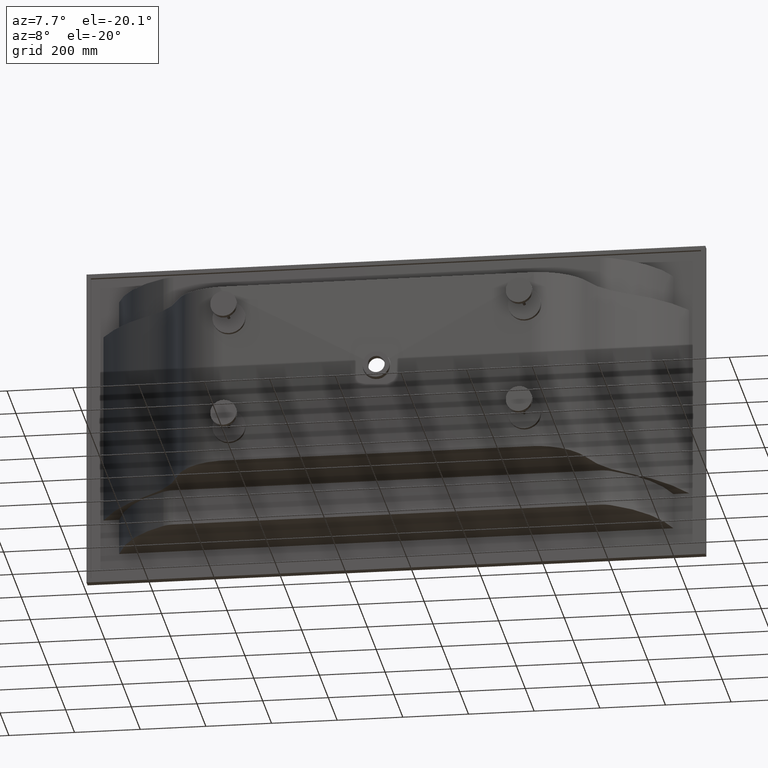
[diagram: clean part render]
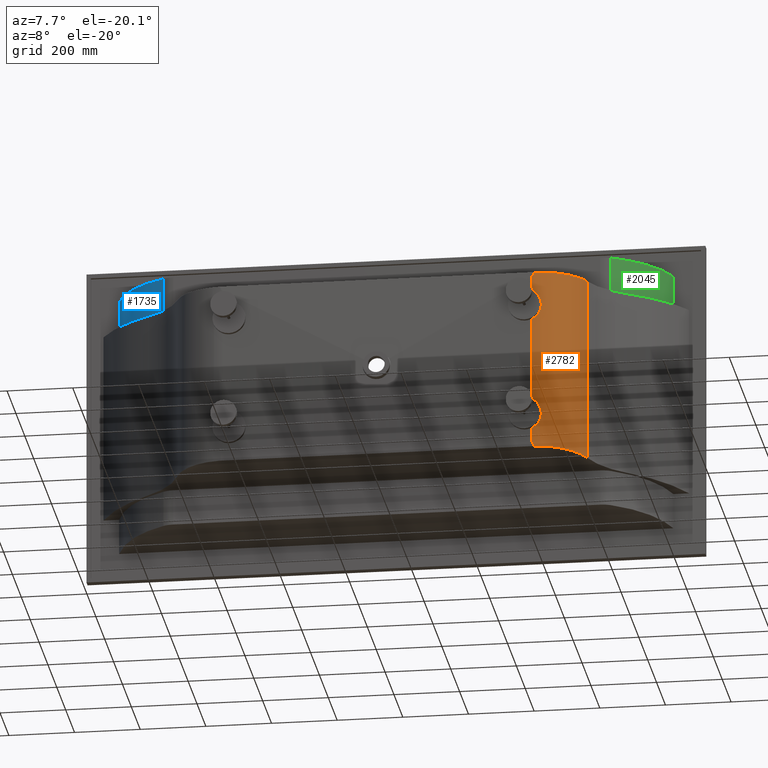
[diagram: same view with three faces highlighted in distinct colors, each labeled with its STEP entity id]
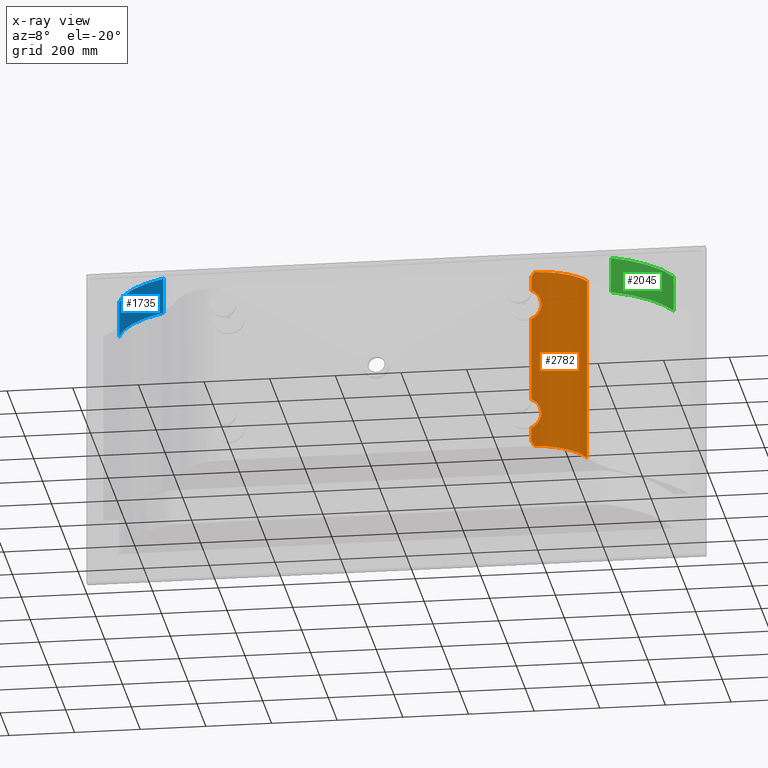
[diagram: x-ray of the same camera — body ghosted, the three highlighted faces saturated]
A machine part, auxiliary view with three faces highlighted in distinct colors.
The next image is the same camera in x-ray (body ghosted, the three faces saturated) — at least one of them is partly hidden behind the body in this view.
Their STEP definitions:

[orange] entity #2782 — the highlighted cylindrical surface (partial cylindrical patch) has radius 165 mm, axis along (-0, -0, -1).
#26 = CARTESIAN_POINT ( 'NONE',  ( 1426.696493059650000, -433.2260214440963800, -633.5027746628824200 ) ) ;
#63 = CARTESIAN_POINT ( 'NONE',  ( 1442.489792115214200, -430.8982968211311100, -668.8217381964243500 ) ) ;
#75 = CARTESIAN_POINT ( 'NONE',  ( 1438.386040424066300, -431.6541000525335200, -300.1020629434635200 ) ) ;
#79 = CARTESIAN_POINT ( 'NONE',  ( 1421.068810131897000, -433.6817647987145400, -711.0523601595712100 ) ) ;
#83 = LINE ( 'NONE', #2024, #2445 ) ;
#105 = CARTESIAN_POINT ( 'NONE',  ( 1431.563250334524400, -432.6748797059344700, -701.2332297683075200 ) ) ;
#115 = CARTESIAN_POINT ( 'NONE',  ( 1425.811046049679400, -433.3107751244260200, -632.6930295115032500 ) ) ;
#122 = CARTESIAN_POINT ( 'NONE',  ( 1421.139164985234900, -433.6870831031774300, -278.9435445288608000 ) ) ;
#132 = CARTESIAN_POINT ( 'NONE',  ( 1412.691473760132300, -433.9987778768532400, -274.2582861340561100 ) ) ;
#200 = CARTESIAN_POINT ( 'NONE',  ( 1429.235751477694500, -432.9553019622056800, -636.0758283631161000 ) ) ;
#236 = CARTESIAN_POINT ( 'NONE',  ( 1567.038037618298400, -321.4290994872972600, -214.9999999999999700 ) ) ;
#244 = EDGE_CURVE ( 'NONE', #812, #5590, #1832, .T. ) ;
#250 = CARTESIAN_POINT ( 'NONE',  ( 1567.038037618298400, -321.4290994872972600, -778.3812225715621500 ) ) ;
#255 =( BOUNDED_CURVE ( )  B_SPLINE_CURVE ( 3, ( #4833, #1196, #3627, #5670 ),
 .UNSPECIFIED., .F., .T. ) 
 B_SPLINE_CURVE_WITH_KNOTS ( ( 4, 4 ),
 ( 0.06389696033279621000, 1.247516648514925600 ),
 .UNSPECIFIED. ) 
 CURVE ( )  GEOMETRIC_REPRESENTATION_ITEM ( )  RATIONAL_B_SPLINE_CURVE ( ( 1.000000000000000000, 0.8866215947016795600, 0.8866215947016795600, 1.000000000000000000 ) ) 
 REPRESENTATION_ITEM ( '' )  );
#284 = AXIS2_PLACEMENT_3D ( 'NONE', #1311, #3276, #3914 ) ;
#513 = CARTESIAN_POINT ( 'NONE',  ( 1441.058614160349200, -431.1738647273696800, -681.9343017412259100 ) ) ;
#535 = CARTESIAN_POINT ( 'NONE',  ( 1442.446520953666300, -430.9068187001532800, -667.6098825917730400 ) ) ;
#598 = VERTEX_POINT ( 'NONE', #4746 ) ;
#650 = EDGE_CURVE ( 'NONE', #2671, #3299, #1356, .T. ) ;
#660 = CARTESIAN_POINT ( 'NONE',  ( 1412.691473760132300, -433.9987778768532400, -715.7417138659449200 ) ) ;
#731 = CARTESIAN_POINT ( 'NONE',  ( 1567.038037618298400, -321.4290994872972600, -211.6187774284378800 ) ) ;
#737 = EDGE_CURVE ( 'NONE', #3994, #2671, #4034, .T. ) ;
#752 = CARTESIAN_POINT ( 'NONE',  ( 1423.073008197570500, -433.5491879024173200, -630.3637222539176700 ) ) ;
#787 = DIRECTION ( 'NONE',  ( -0.0000000000000000000, -0.0000000000000000000, -1.000000000000000000 ) ) ;
#798 = CARTESIAN_POINT ( 'NONE',  ( 1442.151510301503300, -430.9646931125189400, -663.9855355516575600 ) ) ;
#801 = ORIENTED_EDGE ( 'NONE', *, *, #650, .T. ) ;
#812 = VERTEX_POINT ( 'NONE', #250 ) ;
#835 = CARTESIAN_POINT ( 'NONE',  ( 1414.876296786646000, -433.9598873627087400, -275.2700523444316900 ) ) ;
#842 = ORIENTED_EDGE ( 'NONE', *, *, #2043, .F. ) ;
#958 = CARTESIAN_POINT ( 'NONE',  ( 1435.701603409595000, -432.0948562825050800, -695.2873902799416300 ) ) ;
#971 = CARTESIAN_POINT ( 'NONE',  ( 1423.973894665424000, -433.4706933886080800, -708.8695020557629500 ) ) ;
#985 = CARTESIAN_POINT ( 'NONE',  ( 1426.720478016217200, -433.2316870992928000, -706.5340365444855000 ) ) ;
#1005 = CARTESIAN_POINT ( 'NONE',  ( 1440.092584064893600, -431.3527226299148700, -654.6251780921402300 ) ) ;
#1063 = CARTESIAN_POINT ( 'NONE',  ( 1433.093835823678100, -432.4750745446633600, -640.7107027210520300 ) ) ;
#1108 = CARTESIAN_POINT ( 'NONE',  ( 1442.446520953666100, -430.9068187001532200, -317.6098825917731600 ) ) ;
#1128 = DIRECTION ( 'NONE',  ( -0.0000000000000000000, -0.0000000000000000000, -1.000000000000000000 ) ) ;
#1130 = CARTESIAN_POINT ( 'NONE',  ( 1421.121088121154800, -433.6755030411843000, -215.4982614222358300 ) ) ;
#1147 = B_SPLINE_CURVE_WITH_KNOTS ( 'NONE', 3,
 ( #5091, #5542, #1630, #5175, #5618, #3412, #3865, #5656, #752, #115, #26, #4513, #2044, #200, #4133, #5018, #1063, #2776, #4088, #4987, #2359, #5006, #1005, #5216, #1241, #798, #3641, #1387, #535, #63, #2738, #3199, #4490, #1857, #4940, #2290, #513, #5404, #3181, #4063, #3488, #3620, #958, #3226, #2689, #105, #2750, #1433, #985, #971, #2732, #79, #3675, #2245, #4898, #5360 ),
 .UNSPECIFIED., .F., .F.,
 ( 4, 2, 2, 2, 2, 2, 2, 2, 2, 2, 2, 2, 2, 2, 2, 2, 2, 2, 2, 2, 2, 2, 2, 2, 2, 2, 2, 4 ),
 ( 0.1796758216464373300, 0.1832711890805124600, 0.1850688727975501300, 0.1868665565145877800, 0.1940572913827391400, 0.1976526588168149600, 0.1994503425338529600, 0.2012480262508910000, 0.2084387611190439700, 0.2156294959871969100, 0.2192248634212735400, 0.2228202308553501600, 0.2300109657235032700, 0.2336063331575798700, 0.2354040168746183400, 0.2372017005916567900, 0.2443924354598116500, 0.2479878028938890000, 0.2497854866109277800, 0.2515831703279665100, 0.2587739051961212600, 0.2659646400642760000, 0.2695600074983531800, 0.2731553749324303600, 0.2803461098005852200, 0.2839414772346627900, 0.2875368446687403000, 0.2947275795368952700 ),
 .UNSPECIFIED. ) ;
#1196 = CARTESIAN_POINT ( 'NONE',  ( 1490.192053648817800, -429.2560620627033400, -215.3455157662975500 ) ) ;
#1224 = CARTESIAN_POINT ( 'NONE',  ( 1412.691473760132300, -433.9987778768532400, -365.7417138659449200 ) ) ;
#1227 = DIRECTION ( 'NONE',  ( -0.0000000000000000000, -0.0000000000000000000, -1.000000000000000000 ) ) ;
#1241 = CARTESIAN_POINT ( 'NONE',  ( 1441.631659018793500, -431.0654405055162200, -660.4153709856234400 ) ) ;
#1265 = EDGE_CURVE ( 'NONE', #2823, #4621, #2938, .T. ) ;
#1311 = CARTESIAN_POINT ( 'NONE',  ( 1410.585262398701800, -269.0122212314678300, -214.9999999999999700 ) ) ;
#1356 = LINE ( 'NONE', #4260, #3587 ) ;
#1378 = CARTESIAN_POINT ( 'NONE',  ( 1441.116482150589500, -431.1643915077456800, -308.0754668858547800 ) ) ;
#1387 = CARTESIAN_POINT ( 'NONE',  ( 1442.413696066455300, -430.9132798970976500, -667.0014668294197700 ) ) ;
#1400 = LINE ( 'NONE', #236, #2430 ) ;
#1433 = CARTESIAN_POINT ( 'NONE',  ( 1428.426862078347500, -433.0525222782370100, -704.8568043951504500 ) ) ;
#1613 = FACE_OUTER_BOUND ( 'NONE', #2604, .T. ) ;
#1630 = CARTESIAN_POINT ( 'NONE',  ( 1414.876296786645800, -433.9598873627087400, -625.2700523444312900 ) ) ;
#1684 = B_SPLINE_CURVE_WITH_KNOTS ( 'NONE', 3,
 ( #2513, #5707, #835, #3897, #3576, #4384, #5630, #122, #1702, #2240, #4976, #5334, #4524, #4388, #2928, #4255, #3885, #5146, #2489, #75, #2985, #5427, #2367, #1378, #5268, #4744, #3792, #2888, #1108, #3460, #5259, #1773, #4325, #2621, #4541, #2080, #2937, #4122, #2460, #2215, #3501, #1734, #4108, #4379, #4781, #2201, #5771, #4794, #5778, #5666, #1828, #2763, #1878, #4419, #4402, #1224 ),
 .UNSPECIFIED., .F., .F.,
 ( 4, 2, 2, 2, 2, 2, 2, 2, 2, 2, 2, 2, 2, 2, 2, 2, 2, 2, 2, 2, 2, 2, 2, 2, 2, 2, 2, 4 ),
 ( 0.1796758216464372500, 0.1832711890805148700, 0.1850688727975536900, 0.1868665565145925000, 0.1940572913827467400, 0.1976526588168235600, 0.1994503425338620100, 0.2012480262509004900, 0.2084387611190534600, 0.2156294959872064300, 0.2192248634212830600, 0.2228202308553596800, 0.2300109657235129600, 0.2336063331575896400, 0.2354040168746278900, 0.2372017005916661800, 0.2443924354598197000, 0.2479878028938964900, 0.2497854866109349700, 0.2515831703279734500, 0.2587739051961270300, 0.2659646400642806100, 0.2695600074983571800, 0.2731553749324336900, 0.2803461098005872700, 0.2839414772346642300, 0.2875368446687411900, 0.2947275795368951000 ),
 .UNSPECIFIED. ) ;
#1697 = EDGE_CURVE ( 'NONE', #598, #2526, #83, .T. ) ;
#1702 = CARTESIAN_POINT ( 'NONE',  ( 1423.073008197571400, -433.5491879024177100, -280.3637222539178400 ) ) ;
#1734 = CARTESIAN_POINT ( 'NONE',  ( 1436.862058369326900, -431.9096466084647000, -343.1892150341543000 ) ) ;
#1773 = CARTESIAN_POINT ( 'NONE',  ( 1442.498551903349200, -430.8965686994811800, -322.4434691527328600 ) ) ;
#1775 = EDGE_CURVE ( 'NONE', #2526, #2823, #1147, .T. ) ;
#1828 = CARTESIAN_POINT ( 'NONE',  ( 1423.027077120635300, -433.5453929572468000, -359.6178084892939100 ) ) ;
#1832 =( BOUNDED_CURVE ( )  B_SPLINE_CURVE ( 3, ( #3668, #4703, #5640, #5183 ),
 .UNSPECIFIED., .F., .T. ) 
 B_SPLINE_CURVE_WITH_KNOTS ( ( 4, 4 ),
 ( 1.894076005074867500, 3.077695693256989000 ),
 .UNSPECIFIED. ) 
 CURVE ( )  GEOMETRIC_REPRESENTATION_ITEM ( )  RATIONAL_B_SPLINE_CURVE ( ( 1.000000000000000000, 0.8866215947016811100, 0.8866215947016811100, 1.000000000000000000 ) ) 
 REPRESENTATION_ITEM ( '' )  );
#1857 = CARTESIAN_POINT ( 'NONE',  ( 1441.804172227169800, -431.0320062381337600, -678.3986816338135700 ) ) ;
#1878 = CARTESIAN_POINT ( 'NONE',  ( 1420.066173059053700, -433.7427780565195100, -361.7319551882274600 ) ) ;
#1901 = CARTESIAN_POINT ( 'NONE',  ( 1415.503794301160000, -433.9628759124998400, -228.1905632386678900 ) ) ;
#2024 = CARTESIAN_POINT ( 'NONE',  ( 1412.691473760132300, -433.9987778768532400, -214.9999999999999700 ) ) ;
#2043 = EDGE_CURVE ( 'NONE', #3994, #3086, #255, .T. ) ;
#2044 = CARTESIAN_POINT ( 'NONE',  ( 1428.405494955771700, -433.0476252574973700, -635.1982717403183200 ) ) ;
#2076 = CARTESIAN_POINT ( 'NONE',  ( 1412.691473760132300, -433.9987778768532400, -229.7762333309478900 ) ) ;
#2080 = CARTESIAN_POINT ( 'NONE',  ( 1441.199193323553300, -431.1473644269698900, -331.3468894721364100 ) ) ;
#2127 = EDGE_CURVE ( 'NONE', #5590, #4621, #3966, .T. ) ;
#2194 = ORIENTED_EDGE ( 'NONE', *, *, #1775, .T. ) ;
#2201 = CARTESIAN_POINT ( 'NONE',  ( 1431.563250334523900, -432.6748797059344700, -351.2332297683074100 ) ) ;
#2215 = CARTESIAN_POINT ( 'NONE',  ( 1439.727002799061900, -431.4199009939407600, -336.5979284769836100 ) ) ;
#2240 = CARTESIAN_POINT ( 'NONE',  ( 1425.811046049678900, -433.3107751244260200, -282.6930295115034800 ) ) ;
#2245 = CARTESIAN_POINT ( 'NONE',  ( 1417.004888160031000, -433.8999541907423900, -713.6498611690777800 ) ) ;
#2261 = ORIENTED_EDGE ( 'NONE', *, *, #737, .T. ) ;
#2290 = CARTESIAN_POINT ( 'NONE',  ( 1441.199193323553100, -431.1473644269698300, -681.3468894721364700 ) ) ;
#2359 = CARTESIAN_POINT ( 'NONE',  ( 1438.856871990186600, -431.5726819882583500, -651.2250441799545800 ) ) ;
#2367 = CARTESIAN_POINT ( 'NONE',  ( 1440.092584064893600, -431.3527226299149800, -304.6251780921405700 ) ) ;
#2403 = DIRECTION ( 'NONE',  ( -0.0000000000000000000, -0.0000000000000000000, -1.000000000000000000 ) ) ;
#2430 = VECTOR ( 'NONE', #787, 1000.000000000000000 ) ;
#2432 = EDGE_CURVE ( 'NONE', #3299, #598, #1684, .T. ) ;
#2445 = VECTOR ( 'NONE', #2403, 1000.000000000000000 ) ;
#2460 = CARTESIAN_POINT ( 'NONE',  ( 1440.592379006774100, -431.2608080368127600, -333.6927223521573200 ) ) ;
#2489 = CARTESIAN_POINT ( 'NONE',  ( 1436.865832886899600, -431.9090831897700000, -296.8159690331673900 ) ) ;
#2513 = CARTESIAN_POINT ( 'NONE',  ( 1412.691473760132300, -433.9987778768532400, -274.2582861340561100 ) ) ;
#2526 = VERTEX_POINT ( 'NONE', #4011 ) ;
#2585 = CARTESIAN_POINT ( 'NONE',  ( 1415.503794301161200, -433.9628759124999000, -761.8094367613294900 ) ) ;
#2604 = EDGE_LOOP ( 'NONE', ( #2194, #3253, #4704, #5528, #5269, #842, #2261, #801, #5462, #5190 ) ) ;
#2621 = CARTESIAN_POINT ( 'NONE',  ( 1441.804172227169600, -431.0320062381337600, -328.3986816338134000 ) ) ;
#2671 = VERTEX_POINT ( 'NONE', #5129 ) ;
#2689 = CARTESIAN_POINT ( 'NONE',  ( 1433.022537586643500, -432.4812104584953000, -699.3151175333938500 ) ) ;
#2732 = CARTESIAN_POINT ( 'NONE',  ( 1423.027077120635600, -433.5453929572468000, -709.6178084892940200 ) ) ;
#2738 = CARTESIAN_POINT ( 'NONE',  ( 1442.500350913333700, -430.8962140326023000, -669.4264000397514600 ) ) ;
#2750 = CARTESIAN_POINT ( 'NONE',  ( 1430.802267314123100, -432.7709109975705200, -702.1616289459523200 ) ) ;
#2763 = CARTESIAN_POINT ( 'NONE',  ( 1421.068810131897600, -433.6817647987146500, -361.0523601595714400 ) ) ;
#2776 = CARTESIAN_POINT ( 'NONE',  ( 1435.704613596169800, -432.0942818216414600, -644.7198930781548800 ) ) ;
#2782 = ADVANCED_FACE ( 'NONE', ( #1613 ), #4859, .T. ) ;
#2823 = VERTEX_POINT ( 'NONE', #660 ) ;
#2888 = CARTESIAN_POINT ( 'NONE',  ( 1442.413696066455700, -430.9132798970976500, -317.0014668294197100 ) ) ;
#2928 = CARTESIAN_POINT ( 'NONE',  ( 1429.644661902144700, -432.9082293852882200, -286.5240265820732500 ) ) ;
#2937 = CARTESIAN_POINT ( 'NONE',  ( 1441.058614160349000, -431.1738647273696200, -331.9343017412259100 ) ) ;
#2938 = LINE ( 'NONE', #4768, #3987 ) ;
#2985 = CARTESIAN_POINT ( 'NONE',  ( 1438.856871990186400, -431.5726819882584100, -301.2250441799544100 ) ) ;
#3086 = VERTEX_POINT ( 'NONE', #731 ) ;
#3140 = EDGE_CURVE ( 'NONE', #3086, #812, #1400, .T. ) ;
#3181 = CARTESIAN_POINT ( 'NONE',  ( 1440.592379006774500, -431.2608080368128200, -683.6927223521574900 ) ) ;
#3199 = CARTESIAN_POINT ( 'NONE',  ( 1442.498551903348900, -430.8965686994809500, -672.4434691527328600 ) ) ;
#3226 = CARTESIAN_POINT ( 'NONE',  ( 1433.723258367987900, -432.3832016801590600, -698.3213811564467100 ) ) ;
#3253 = ORIENTED_EDGE ( 'NONE', *, *, #1265, .T. ) ;
#3276 = DIRECTION ( 'NONE',  ( -0.0000000000000000000, -0.0000000000000000000, -1.000000000000000000 ) ) ;
#3286 = CARTESIAN_POINT ( 'NONE',  ( 1421.121088121156200, -433.6755030411843000, -774.5017385777642900 ) ) ;
#3299 = VERTEX_POINT ( 'NONE', #132 ) ;
#3412 = CARTESIAN_POINT ( 'NONE',  ( 1418.063990091428400, -433.8434842776904400, -627.0249957003103400 ) ) ;
#3460 = CARTESIAN_POINT ( 'NONE',  ( 1442.489792115214000, -430.8982968211311100, -318.8217381964246300 ) ) ;
#3488 = CARTESIAN_POINT ( 'NONE',  ( 1438.874751128399100, -431.5721979426758100, -688.8444786195555000 ) ) ;
#3501 = CARTESIAN_POINT ( 'NONE',  ( 1438.874751128398900, -431.5721979426758100, -338.8444786195553900 ) ) ;
#3576 = CARTESIAN_POINT ( 'NONE',  ( 1417.012982886346400, -433.8878138904410100, -276.4169499235465000 ) ) ;
#3587 = VECTOR ( 'NONE', #1128, 1000.000000000000000 ) ;
#3620 = CARTESIAN_POINT ( 'NONE',  ( 1436.862058369326900, -431.9096466084647500, -693.1892150341544700 ) ) ;
#3627 = CARTESIAN_POINT ( 'NONE',  ( 1545.050838339348700, -387.0560208332939300, -213.8869889956958400 ) ) ;
#3641 = CARTESIAN_POINT ( 'NONE',  ( 1442.282480161618900, -430.9390390636826300, -665.1856782704341000 ) ) ;
#3668 = CARTESIAN_POINT ( 'NONE',  ( 1567.038037618298400, -321.4290994872972600, -778.3812225715621500 ) ) ;
#3675 = CARTESIAN_POINT ( 'NONE',  ( 1420.066173059053900, -433.7427780565195100, -711.7319551882274000 ) ) ;
#3792 = CARTESIAN_POINT ( 'NONE',  ( 1442.282480161618400, -430.9390390636826300, -315.1856782704338700 ) ) ;
#3865 = CARTESIAN_POINT ( 'NONE',  ( 1418.582361137442400, -433.8191039723894300, -627.3376620228374300 ) ) ;
#3885 = CARTESIAN_POINT ( 'NONE',  ( 1433.093835823678100, -432.4750745446633600, -290.7107027210521400 ) ) ;
#3897 = CARTESIAN_POINT ( 'NONE',  ( 1416.480896551265900, -433.9077271814622300, -276.1219494577754900 ) ) ;
#3914 = DIRECTION ( 'NONE',  ( -1.000000000000000000, 0.0000000000000000000, 0.0000000000000000000 ) ) ;
#3966 =( BOUNDED_CURVE ( )  B_SPLINE_CURVE ( 3, ( #3286, #4981, #2585, #5697 ),
 .UNSPECIFIED., .F., .F. ) 
 B_SPLINE_CURVE_WITH_KNOTS ( ( 4, 4 ),
 ( 3.077695693256989000, 3.128827389563137100 ),
 .UNSPECIFIED. ) 
 CURVE ( )  GEOMETRIC_REPRESENTATION_ITEM ( )  RATIONAL_B_SPLINE_CURVE ( ( 1.000000000000000000, 0.9997821410027409900, 0.9997821410027409900, 1.000000000000000000 ) ) 
 REPRESENTATION_ITEM ( '' )  );
#3987 = VECTOR ( 'NONE', #1227, 1000.000000000000000 ) ;
#3994 = VERTEX_POINT ( 'NONE', #1130 ) ;
#4011 = CARTESIAN_POINT ( 'NONE',  ( 1412.691473760132300, -433.9987778768532400, -624.2582861340562200 ) ) ;
#4034 =( BOUNDED_CURVE ( )  B_SPLINE_CURVE ( 3, ( #4596, #4680, #1901, #2076 ),
 .UNSPECIFIED., .F., .T. ) 
 B_SPLINE_CURVE_WITH_KNOTS ( ( 4, 4 ),
 ( 6.219288346846792800, 6.270420043152933300 ),
 .UNSPECIFIED. ) 
 CURVE ( )  GEOMETRIC_REPRESENTATION_ITEM ( )  RATIONAL_B_SPLINE_CURVE ( ( 1.000000000000000000, 0.9997821410027412100, 0.9997821410027412100, 1.000000000000000000 ) ) 
 REPRESENTATION_ITEM ( '' )  );
#4063 = CARTESIAN_POINT ( 'NONE',  ( 1439.727002799061900, -431.4199009939409300, -686.5979284769837200 ) ) ;
#4088 = CARTESIAN_POINT ( 'NONE',  ( 1436.865832886899600, -431.9090831897699400, -646.8159690331674500 ) ) ;
#4108 = CARTESIAN_POINT ( 'NONE',  ( 1435.701603409595700, -432.0948562825051900, -345.2873902799418000 ) ) ;
#4122 = CARTESIAN_POINT ( 'NONE',  ( 1440.755394680835000, -431.2305522146203300, -333.1066186112624300 ) ) ;
#4133 = CARTESIAN_POINT ( 'NONE',  ( 1429.644661902145300, -432.9082293852882200, -636.5240265820733600 ) ) ;
#4255 = CARTESIAN_POINT ( 'NONE',  ( 1431.644300724026600, -432.6707440032328100, -288.7975804389434400 ) ) ;
#4260 = CARTESIAN_POINT ( 'NONE',  ( 1412.691473760132300, -433.9987778768532400, -214.9999999999999700 ) ) ;
#4325 = CARTESIAN_POINT ( 'NONE',  ( 1442.323268059977200, -430.9314086509390900, -324.8372480392825400 ) ) ;
#4379 = CARTESIAN_POINT ( 'NONE',  ( 1433.723258367987900, -432.3832016801591200, -348.3213811564465900 ) ) ;
#4384 = CARTESIAN_POINT ( 'NONE',  ( 1418.063990091428200, -433.8434842776903800, -277.0249957003105100 ) ) ;
#4388 = CARTESIAN_POINT ( 'NONE',  ( 1429.235751477694500, -432.9553019622055100, -286.0758283631161600 ) ) ;
#4402 = CARTESIAN_POINT ( 'NONE',  ( 1414.886568259948300, -433.9707553938769100, -364.7727472652631500 ) ) ;
#4419 = CARTESIAN_POINT ( 'NONE',  ( 1417.004888160030500, -433.8999541907422800, -363.6498611690778400 ) ) ;
#4490 = CARTESIAN_POINT ( 'NONE',  ( 1442.323268059976700, -430.9314086509390300, -674.8372480392820300 ) ) ;
#4513 = CARTESIAN_POINT ( 'NONE',  ( 1427.983406745911500, -433.0929652470120500, -634.7680578959090100 ) ) ;
#4524 = CARTESIAN_POINT ( 'NONE',  ( 1428.405494955771700, -433.0476252574973700, -285.1982717403183800 ) ) ;
#4541 = CARTESIAN_POINT ( 'NONE',  ( 1441.588277588212800, -431.0735761312373000, -329.5809356355687200 ) ) ;
#4596 = CARTESIAN_POINT ( 'NONE',  ( 1421.121088121154800, -433.6755030411843000, -215.4982614222358300 ) ) ;
#4621 = VERTEX_POINT ( 'NONE', #5082 ) ;
#4680 = CARTESIAN_POINT ( 'NONE',  ( 1418.314278044004400, -433.8550941527173600, -223.4302021816110900 ) ) ;
#4703 = CARTESIAN_POINT ( 'NONE',  ( 1545.050838339348700, -387.0560208332933000, -776.1130110043042100 ) ) ;
#4704 = ORIENTED_EDGE ( 'NONE', *, *, #2127, .F. ) ;
#4744 = CARTESIAN_POINT ( 'NONE',  ( 1442.151510301502900, -430.9646931125187700, -313.9855355516575100 ) ) ;
#4746 = CARTESIAN_POINT ( 'NONE',  ( 1412.691473760132300, -433.9987778768532400, -365.7417138659449200 ) ) ;
#4768 = CARTESIAN_POINT ( 'NONE',  ( 1412.691473760132300, -433.9987778768532400, -214.9999999999999700 ) ) ;
#4781 = CARTESIAN_POINT ( 'NONE',  ( 1433.022537586643000, -432.4812104584951800, -349.3151175333935600 ) ) ;
#4794 = CARTESIAN_POINT ( 'NONE',  ( 1428.426862078347100, -433.0525222782368900, -354.8568043951501100 ) ) ;
#4833 = CARTESIAN_POINT ( 'NONE',  ( 1421.121088121154800, -433.6755030411843000, -215.4982614222358300 ) ) ;
#4858 = CARTESIAN_POINT ( 'NONE',  ( 1421.121088121156200, -433.6755030411843000, -774.5017385777642900 ) ) ;
#4859 = CYLINDRICAL_SURFACE ( 'NONE', #284, 165.0000000000000300 ) ;
#4898 = CARTESIAN_POINT ( 'NONE',  ( 1414.886568259948300, -433.9707553938770800, -714.7727472652630900 ) ) ;
#4940 = CARTESIAN_POINT ( 'NONE',  ( 1441.588277588212800, -431.0735761312373000, -679.5809356355688400 ) ) ;
#4976 = CARTESIAN_POINT ( 'NONE',  ( 1426.696493059649800, -433.2260214440962600, -283.5027746628823600 ) ) ;
#4981 = CARTESIAN_POINT ( 'NONE',  ( 1418.314278044006000, -433.8550941527173600, -766.5697978183886800 ) ) ;
#4987 = CARTESIAN_POINT ( 'NONE',  ( 1438.386040424066800, -431.6541000525336400, -650.1020629434636900 ) ) ;
#5006 = CARTESIAN_POINT ( 'NONE',  ( 1439.709266642937800, -431.4221337587982200, -653.4850464791679800 ) ) ;
#5018 = CARTESIAN_POINT ( 'NONE',  ( 1431.644300724026400, -432.6707440032328700, -638.7975804389433300 ) ) ;
#5082 = CARTESIAN_POINT ( 'NONE',  ( 1412.691473760132300, -433.9987778768532400, -760.2237666690473400 ) ) ;
#5091 = CARTESIAN_POINT ( 'NONE',  ( 1412.691473760132300, -433.9987778768532400, -624.2582861340562200 ) ) ;
#5129 = CARTESIAN_POINT ( 'NONE',  ( 1412.691473760132300, -433.9987778768532400, -229.7762333309478900 ) ) ;
#5146 = CARTESIAN_POINT ( 'NONE',  ( 1435.704613596170000, -432.0942818216415200, -294.7198930781548300 ) ) ;
#5175 = CARTESIAN_POINT ( 'NONE',  ( 1416.480896551265200, -433.9077271814621200, -626.1219494577756000 ) ) ;
#5183 = CARTESIAN_POINT ( 'NONE',  ( 1421.121088121156200, -433.6755030411843000, -774.5017385777642900 ) ) ;
#5190 = ORIENTED_EDGE ( 'NONE', *, *, #1697, .T. ) ;
#5216 = CARTESIAN_POINT ( 'NONE',  ( 1441.116482150589500, -431.1643915077458500, -658.0754668858546700 ) ) ;
#5259 = CARTESIAN_POINT ( 'NONE',  ( 1442.500350913333500, -430.8962140326022400, -319.4264000397512900 ) ) ;
#5268 = CARTESIAN_POINT ( 'NONE',  ( 1441.631659018793200, -431.0654405055162200, -310.4153709856233300 ) ) ;
#5269 = ORIENTED_EDGE ( 'NONE', *, *, #3140, .F. ) ;
#5334 = CARTESIAN_POINT ( 'NONE',  ( 1427.983406745911700, -433.0929652470119900, -284.7680578959090700 ) ) ;
#5360 = CARTESIAN_POINT ( 'NONE',  ( 1412.691473760132300, -433.9987778768532400, -715.7417138659449200 ) ) ;
#5404 = CARTESIAN_POINT ( 'NONE',  ( 1440.755394680834600, -431.2305522146203300, -683.1066186112625500 ) ) ;
#5427 = CARTESIAN_POINT ( 'NONE',  ( 1439.709266642937800, -431.4221337587981700, -303.4850464791676900 ) ) ;
#5462 = ORIENTED_EDGE ( 'NONE', *, *, #2432, .T. ) ;
#5528 = ORIENTED_EDGE ( 'NONE', *, *, #244, .F. ) ;
#5542 = CARTESIAN_POINT ( 'NONE',  ( 1413.791331578286900, -433.9847371387492100, -624.7437893738390400 ) ) ;
#5590 = VERTEX_POINT ( 'NONE', #4858 ) ;
#5618 = CARTESIAN_POINT ( 'NONE',  ( 1417.012982886346400, -433.8878138904410100, -626.4169499235464400 ) ) ;
#5630 = CARTESIAN_POINT ( 'NONE',  ( 1418.582361137442600, -433.8191039723894800, -277.3376620228376100 ) ) ;
#5640 = CARTESIAN_POINT ( 'NONE',  ( 1490.192053648818700, -429.2560620627027100, -774.6544842337024200 ) ) ;
#5656 = CARTESIAN_POINT ( 'NONE',  ( 1421.139164985234400, -433.6870831031774300, -628.9435445288604600 ) ) ;
#5666 = CARTESIAN_POINT ( 'NONE',  ( 1423.973894665423600, -433.4706933886079700, -358.8695020557627200 ) ) ;
#5670 = CARTESIAN_POINT ( 'NONE',  ( 1567.038037618298400, -321.4290994872972600, -211.6187774284378800 ) ) ;
#5697 = CARTESIAN_POINT ( 'NONE',  ( 1412.691473760132300, -433.9987778768532400, -760.2237666690473400 ) ) ;
#5707 = CARTESIAN_POINT ( 'NONE',  ( 1413.791331578287100, -433.9847371387491500, -274.7437893738389200 ) ) ;
#5771 = CARTESIAN_POINT ( 'NONE',  ( 1430.802267314123400, -432.7709109975706400, -352.1616289459523700 ) ) ;
#5778 = CARTESIAN_POINT ( 'NONE',  ( 1426.720478016216900, -433.2316870992926900, -356.5340365444852200 ) ) ;

[blue] entity #1735 — the highlighted cylindrical surface (partial cylindrical patch) has radius 335 mm, axis along (-0, -0, -1).
#70 = CARTESIAN_POINT ( 'NONE',  ( 98.28341852489653300, 0.0000000000000000000, -200.5094767549137500 ) ) ;
#486 = EDGE_CURVE ( 'NONE', #4552, #4434, #3041, .T. ) ;
#596 = DIRECTION ( 'NONE',  ( -1.000000000000000000, 0.0000000000000000000, 0.0000000000000000000 ) ) ;
#819 = DIRECTION ( 'NONE',  ( -0.0000000000000000000, -0.0000000000000000000, -1.000000000000000000 ) ) ;
#1089 = ORIENTED_EDGE ( 'NONE', *, *, #1379, .T. ) ;
#1261 = CARTESIAN_POINT ( 'NONE',  ( 261.0070811011262900, -207.0201536414668600, -104.9999999999999900 ) ) ;
#1292 = EDGE_CURVE ( 'NONE', #4215, #4552, #2808, .T. ) ;
#1379 = EDGE_CURVE ( 'NONE', #4215, #4830, #3823, .T. ) ;
#1501 = CARTESIAN_POINT ( 'NONE',  ( 261.0070811011262900, -207.0201536414668600, -207.6645511895266300 ) ) ;
#1561 = CARTESIAN_POINT ( 'NONE',  ( 179.6454116308969200, -162.4950932959762900, -206.1256666153737700 ) ) ;
#1567 = ORIENTED_EDGE ( 'NONE', *, *, #4585, .T. ) ;
#1675 = AXIS2_PLACEMENT_3D ( 'NONE', #1919, #2008, #596 ) ;
#1716 = CARTESIAN_POINT ( 'NONE',  ( 122.3295142294350200, -89.57671315202715300, -203.6054461034860900 ) ) ;
#1735 = ADVANCED_FACE ( 'NONE', ( #3228 ), #4256, .T. ) ;
#1755 = CARTESIAN_POINT ( 'NONE',  ( 179.6454116308970900, -162.4950932959764000, -96.12566661537384500 ) ) ;
#1919 = CARTESIAN_POINT ( 'NONE',  ( 421.8287256911478900, 86.85294589532421100, -104.9999999999999900 ) ) ;
#2008 = DIRECTION ( 'NONE',  ( -0.0000000000000000000, -0.0000000000000000000, -1.000000000000000000 ) ) ;
#2191 = CARTESIAN_POINT ( 'NONE',  ( 261.0070811011262900, -207.0201536414668600, -97.66455118952677600 ) ) ;
#2393 = DIRECTION ( 'NONE',  ( -0.0000000000000000000, -0.0000000000000000000, -1.000000000000000000 ) ) ;
#2412 = CARTESIAN_POINT ( 'NONE',  ( 261.0070811011262900, -207.0201536414668600, -207.6645511895266300 ) ) ;
#2455 = CARTESIAN_POINT ( 'NONE',  ( 98.28341852489653300, 0.0000000000000000000, -90.50947675491369200 ) ) ;
#2772 = LINE ( 'NONE', #3760, #5620 ) ;
#2808 = LINE ( 'NONE', #1261, #3855 ) ;
#3041 =( BOUNDED_CURVE ( )  B_SPLINE_CURVE ( 3, ( #2412, #1561, #1716, #4247 ),
 .UNSPECIFIED., .F., .T. ) 
 B_SPLINE_CURVE_WITH_KNOTS ( ( 4, 4 ),
 ( 0.5007283637659586400, 1.308537786497793600 ),
 .UNSPECIFIED. ) 
 CURVE ( )  GEOMETRIC_REPRESENTATION_ITEM ( )  RATIONAL_B_SPLINE_CURVE ( ( 1.000000000000000000, 0.9463556066969937000, 0.9463556066969937000, 1.000000000000000000 ) ) 
 REPRESENTATION_ITEM ( '' )  );
#3228 = FACE_OUTER_BOUND ( 'NONE', #4275, .T. ) ;
#3270 = CARTESIAN_POINT ( 'NONE',  ( 261.0070811011262900, -207.0201536414668600, -97.66455118952677600 ) ) ;
#3760 = CARTESIAN_POINT ( 'NONE',  ( 98.28341852489653300, 0.0000000000000000000, -104.9999999999999900 ) ) ;
#3823 =( BOUNDED_CURVE ( )  B_SPLINE_CURVE ( 3, ( #2191, #1755, #4843, #5299 ),
 .UNSPECIFIED., .F., .T. ) 
 B_SPLINE_CURVE_WITH_KNOTS ( ( 4, 4 ),
 ( 0.5007283637659578600, 1.308537786497793600 ),
 .UNSPECIFIED. ) 
 CURVE ( )  GEOMETRIC_REPRESENTATION_ITEM ( )  RATIONAL_B_SPLINE_CURVE ( ( 1.000000000000000000, 0.9463556066969935900, 0.9463556066969935900, 1.000000000000000000 ) ) 
 REPRESENTATION_ITEM ( '' )  );
#3855 = VECTOR ( 'NONE', #819, 1000.000000000000000 ) ;
#4215 = VERTEX_POINT ( 'NONE', #3270 ) ;
#4247 = CARTESIAN_POINT ( 'NONE',  ( 98.28341852489653300, 0.0000000000000000000, -200.5094767549137500 ) ) ;
#4256 = CYLINDRICAL_SURFACE ( 'NONE', #1675, 335.0000000000000600 ) ;
#4275 = EDGE_LOOP ( 'NONE', ( #1089, #1567, #5195, #4968 ) ) ;
#4434 = VERTEX_POINT ( 'NONE', #70 ) ;
#4552 = VERTEX_POINT ( 'NONE', #1501 ) ;
#4585 = EDGE_CURVE ( 'NONE', #4830, #4434, #2772, .T. ) ;
#4830 = VERTEX_POINT ( 'NONE', #2455 ) ;
#4843 = CARTESIAN_POINT ( 'NONE',  ( 122.3295142294350600, -89.57671315202723900, -93.60544610348618700 ) ) ;
#4968 = ORIENTED_EDGE ( 'NONE', *, *, #1292, .F. ) ;
#5195 = ORIENTED_EDGE ( 'NONE', *, *, #486, .F. ) ;
#5299 = CARTESIAN_POINT ( 'NONE',  ( 98.28341852489653300, 0.0000000000000000000, -90.50947675491369200 ) ) ;
#5620 = VECTOR ( 'NONE', #2393, 1000.000000000000000 ) ;

[green] entity #2045 — the highlighted cylindrical surface (partial cylindrical patch) has radius 335 mm, axis along (-0, -0, -1).
#72 = EDGE_CURVE ( 'NONE', #5510, #5231, #181, .T. ) ;
#181 =( BOUNDED_CURVE ( )  B_SPLINE_CURVE ( 3, ( #4589, #4168, #580, #2328 ),
 .UNSPECIFIED., .F., .F. ) 
 B_SPLINE_CURVE_WITH_KNOTS ( ( 4, 4 ),
 ( 4.974647520681793700, 5.782456943413627900 ),
 .UNSPECIFIED. ) 
 CURVE ( )  GEOMETRIC_REPRESENTATION_ITEM ( )  RATIONAL_B_SPLINE_CURVE ( ( 1.000000000000000000, 0.9463556066969938100, 0.9463556066969938100, 1.000000000000000000 ) ) 
 REPRESENTATION_ITEM ( '' )  );
#397 = CARTESIAN_POINT ( 'NONE',  ( 1623.992918898878300, -207.0201536414668600, -104.9999999999999900 ) ) ;
#520 = DIRECTION ( 'NONE',  ( -0.0000000000000000000, -0.0000000000000000000, -1.000000000000000000 ) ) ;
#580 = CARTESIAN_POINT ( 'NONE',  ( 1705.354588369107200, -162.4950932959761200, -96.12566661537384500 ) ) ;
#963 = CARTESIAN_POINT ( 'NONE',  ( 1705.354588369107700, -162.4950932959762300, -206.1256666153737500 ) ) ;
#1602 = CARTESIAN_POINT ( 'NONE',  ( 1623.992918898878300, -207.0201536414668600, -207.6645511895266300 ) ) ;
#1659 =( BOUNDED_CURVE ( )  B_SPLINE_CURVE ( 3, ( #1602, #963, #2970, #2216 ),
 .UNSPECIFIED., .F., .T. ) 
 B_SPLINE_CURVE_WITH_KNOTS ( ( 4, 4 ),
 ( 0.5007283637659578600, 1.308537786497793000 ),
 .UNSPECIFIED. ) 
 CURVE ( )  GEOMETRIC_REPRESENTATION_ITEM ( )  RATIONAL_B_SPLINE_CURVE ( ( 1.000000000000000000, 0.9463556066969937000, 0.9463556066969937000, 1.000000000000000000 ) ) 
 REPRESENTATION_ITEM ( '' )  );
#2045 = ADVANCED_FACE ( 'NONE', ( #2795 ), #5503, .T. ) ;
#2071 = EDGE_CURVE ( 'NONE', #5231, #4761, #2456, .T. ) ;
#2084 = CARTESIAN_POINT ( 'NONE',  ( 1463.171274308856700, 86.85294589532443900, -104.9999999999999900 ) ) ;
#2139 = VECTOR ( 'NONE', #4915, 1000.000000000000000 ) ;
#2195 = ORIENTED_EDGE ( 'NONE', *, *, #4664, .T. ) ;
#2216 = CARTESIAN_POINT ( 'NONE',  ( 1786.716581475108100, 0.0000000000000000000, -200.5094767549137200 ) ) ;
#2328 = CARTESIAN_POINT ( 'NONE',  ( 1623.992918898878300, -207.0201536414668600, -97.66455118952677600 ) ) ;
#2456 = LINE ( 'NONE', #397, #3366 ) ;
#2529 = EDGE_LOOP ( 'NONE', ( #5319, #2195, #2829, #4771 ) ) ;
#2795 = FACE_OUTER_BOUND ( 'NONE', #2529, .T. ) ;
#2829 = ORIENTED_EDGE ( 'NONE', *, *, #72, .T. ) ;
#2970 = CARTESIAN_POINT ( 'NONE',  ( 1762.670485770569300, -89.57671315202715300, -203.6054461034860900 ) ) ;
#3023 = DIRECTION ( 'NONE',  ( -0.0000000000000000000, -0.0000000000000000000, -1.000000000000000000 ) ) ;
#3050 = CARTESIAN_POINT ( 'NONE',  ( 1786.716581475108100, 0.0000000000000000000, -104.9999999999999900 ) ) ;
#3334 = EDGE_CURVE ( 'NONE', #4761, #3735, #1659, .T. ) ;
#3366 = VECTOR ( 'NONE', #520, 1000.000000000000000 ) ;
#3400 = LINE ( 'NONE', #3050, #2139 ) ;
#3454 = AXIS2_PLACEMENT_3D ( 'NONE', #2084, #3023, #5415 ) ;
#3735 = VERTEX_POINT ( 'NONE', #5726 ) ;
#4168 = CARTESIAN_POINT ( 'NONE',  ( 1762.670485770569000, -89.57671315202708200, -93.60544610348618700 ) ) ;
#4505 = CARTESIAN_POINT ( 'NONE',  ( 1623.992918898878300, -207.0201536414668600, -207.6645511895266300 ) ) ;
#4564 = CARTESIAN_POINT ( 'NONE',  ( 1786.716581475108100, 0.0000000000000000000, -90.50947675491369200 ) ) ;
#4589 = CARTESIAN_POINT ( 'NONE',  ( 1786.716581475108100, 0.0000000000000000000, -90.50947675491369200 ) ) ;
#4664 = EDGE_CURVE ( 'NONE', #3735, #5510, #3400, .T. ) ;
#4761 = VERTEX_POINT ( 'NONE', #4505 ) ;
#4771 = ORIENTED_EDGE ( 'NONE', *, *, #2071, .T. ) ;
#4915 = DIRECTION ( 'NONE',  ( 0.0000000000000000000, 0.0000000000000000000, 1.000000000000000000 ) ) ;
#5231 = VERTEX_POINT ( 'NONE', #5601 ) ;
#5319 = ORIENTED_EDGE ( 'NONE', *, *, #3334, .T. ) ;
#5415 = DIRECTION ( 'NONE',  ( -1.000000000000000000, 0.0000000000000000000, 0.0000000000000000000 ) ) ;
#5503 = CYLINDRICAL_SURFACE ( 'NONE', #3454, 335.0000000000001700 ) ;
#5510 = VERTEX_POINT ( 'NONE', #4564 ) ;
#5601 = CARTESIAN_POINT ( 'NONE',  ( 1623.992918898878300, -207.0201536414668600, -97.66455118952677600 ) ) ;
#5726 = CARTESIAN_POINT ( 'NONE',  ( 1786.716581475108100, 0.0000000000000000000, -200.5094767549137200 ) ) ;